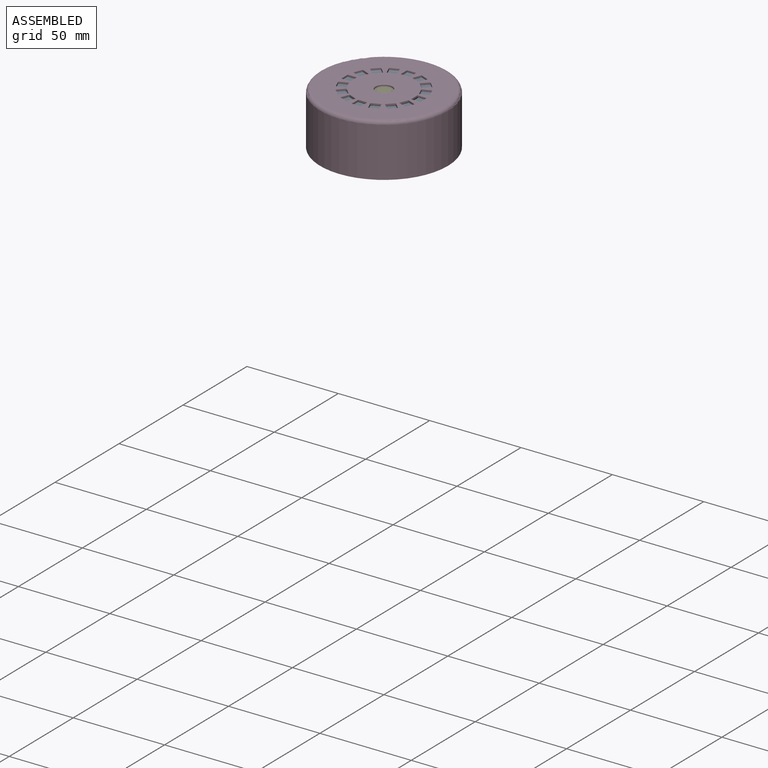
[diagram: assembled view]
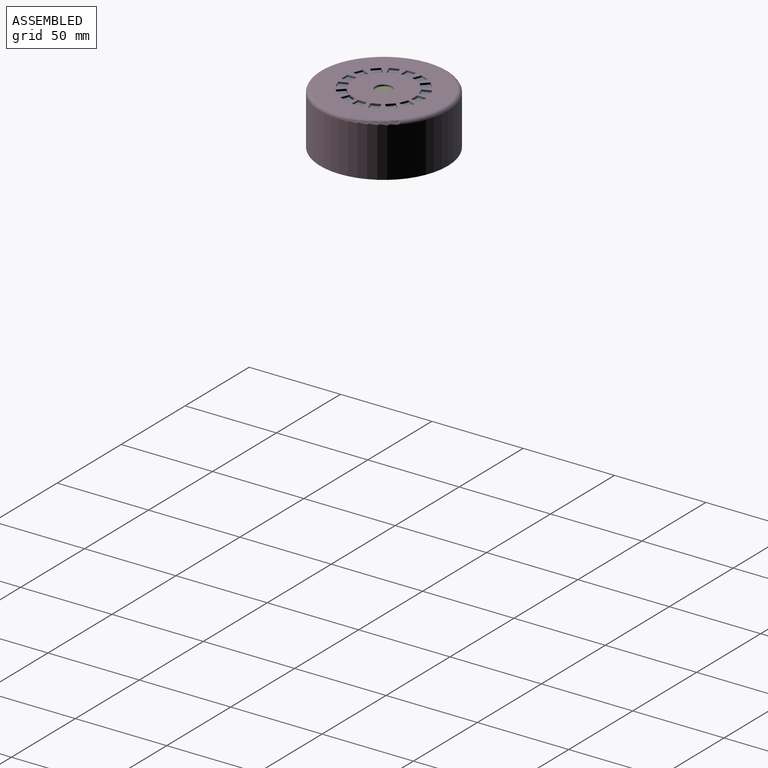
[diagram: assembled view, second angle]
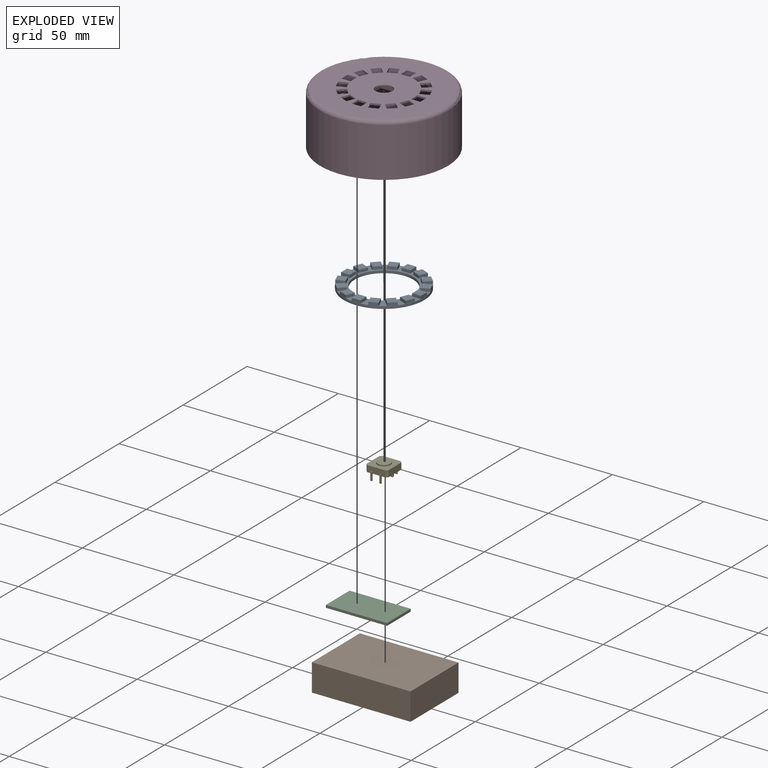
[diagram: exploded view]
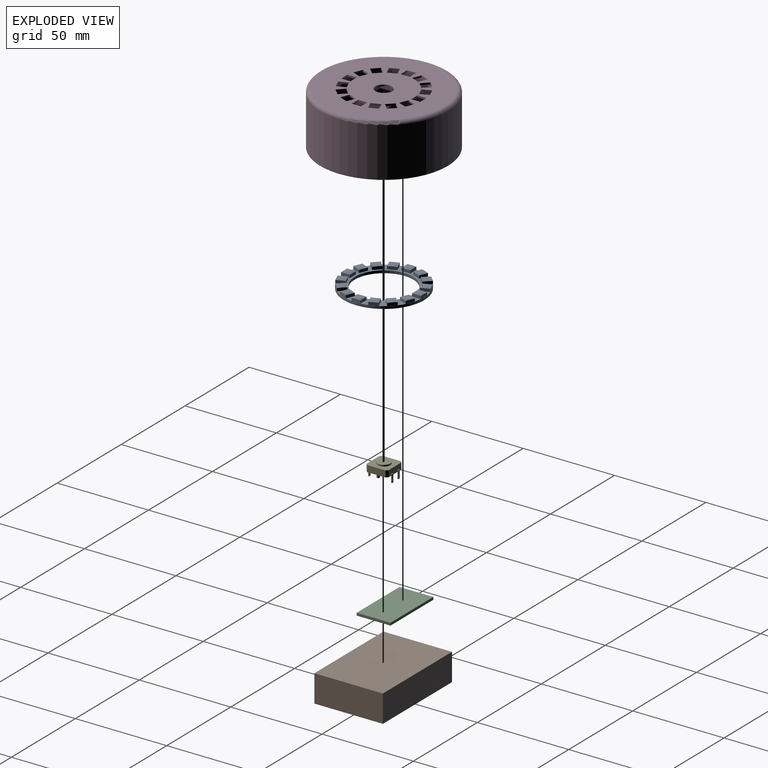
[diagram: exploded view, second angle]
ASSEMBLY  parts=5 mates=4
PART A: 132 faces, bbox 44x44x3.1 mm
  f0: cylinder r=1.95mm len=3.9mm, axis (0,0,-1), area 0.6mm2, adj f1,f131
  f1: plane 3.9x3.9mm, normal (0,0,1), area 11.9mm2, adj f0
  f2: cylinder r=1.95mm len=3.9mm, axis (0,0,-1), area 0.6mm2, adj f3,f126
  f3: plane 3.9x3.9mm, normal (0,0,1), area 11.9mm2, adj f2
  f4: cylinder r=1.95mm len=3.9mm, axis (0,0,-1), area 0.6mm2, adj f5,f121
  f5: plane 3.9x3.9mm, normal (0,0,1), area 11.9mm2, adj f4
  f6: cylinder r=1.95mm len=3.9mm, axis (0,0,-1), area 0.6mm2, adj f7,f116
  f7: plane 3.9x3.9mm, normal (0,0,1), area 11.9mm2, adj f6
  f8: cylinder r=1.95mm len=3.9mm, axis (0,0,-1), area 0.6mm2, adj f9,f111
  f9: plane 3.9x3.9mm, normal (0,0,1), area 11.9mm2, adj f8
  f10: cylinder r=1.95mm len=3.9mm, axis (0,0,-1), area 0.6mm2, adj f11,f106
  f11: plane 3.9x3.9mm, normal (0,0,1), area 11.9mm2, adj f10
  f12: cylinder r=1.95mm len=3.9mm, axis (0,0,-1), area 0.6mm2, adj f13,f101
  f13: plane 3.9x3.9mm, normal (0,0,1), area 11.9mm2, adj f12
  f14: cylinder r=1.95mm len=3.9mm, axis (0,0,-1), area 0.6mm2, adj f15,f96
  f15: plane 3.9x3.9mm, normal (0,0,1), area 11.9mm2, adj f14
  f16: cylinder r=1.95mm len=3.9mm, axis (0,0,-1), area 0.6mm2, adj f17,f91
  f17: plane 3.9x3.9mm, normal (0,0,1), area 11.9mm2, adj f16
  f18: cylinder r=1.95mm len=3.9mm, axis (0,0,-1), area 0.6mm2, adj f19,f86
  f19: plane 3.9x3.9mm, normal (0,0,1), area 11.9mm2, adj f18
  f20: cylinder r=1.95mm len=3.9mm, axis (0,0,-1), area 0.6mm2, adj f21,f81
  f21: plane 3.9x3.9mm, normal (0,0,1), area 11.9mm2, adj f20
  f22: cylinder r=1.95mm len=3.9mm, axis (0,0,-1), area 0.6mm2, adj f23,f76
  f23: plane 3.9x3.9mm, normal (0,0,1), area 11.9mm2, adj f22
  f24: cylinder r=1.95mm len=3.9mm, axis (0,0,-1), area 0.6mm2, adj f25,f71
  f25: plane 3.9x3.9mm, normal (0,0,1), area 11.9mm2, adj f24
  f26: cylinder r=1.95mm len=3.9mm, axis (0,0,-1), area 0.6mm2, adj f27,f66
  f27: plane 3.9x3.9mm, normal (0,0,1), area 11.9mm2, adj f26
  f28: cylinder r=1.95mm len=3.9mm, axis (0,0,-1), area 0.6mm2, adj f29,f61
  f29: plane 3.9x3.9mm, normal (0,0,1), area 11.9mm2, adj f28
  f30: plane 43.74x43.74mm, normal (0,0,1), area 340.9mm2, adj f47,f48,f51,f52,f53,f58,f59,f60
  f31: plane 4.43x1.84mm, normal (0,0,1), area 0.4mm2, adj f48,f127
  f32: plane 3.39x3.39mm, normal (0,0,1), area 0.4mm2, adj f48,f122
  f33: plane 4.43x1.84mm, normal (0,0,1), area 0.4mm2, adj f48,f117
  f34: plane 4.8x0.13mm, normal (0,0,1), area 0.4mm2, adj f48,f112
  f35: plane 4.43x1.84mm, normal (0,0,1), area 0.4mm2, adj f48,f107
  f36: plane 3.39x3.39mm, normal (0,0,1), area 0.4mm2, adj f48,f102
  f37: plane 4.43x1.84mm, normal (0,0,1), area 0.4mm2, adj f48,f97
  f38: plane 4.8x0.13mm, normal (0,0,1), area 0.4mm2, adj f48,f92
  f39: plane 4.43x1.84mm, normal (0,0,1), area 0.4mm2, adj f48,f87
  f40: plane 3.39x3.39mm, normal (0,0,1), area 0.4mm2, adj f48,f82
  f41: plane 4.43x1.84mm, normal (0,0,1), area 0.4mm2, adj f48,f77
  f42: plane 4.8x0.13mm, normal (0,0,1), area 0.4mm2, adj f48,f72
  f43: plane 4.43x1.84mm, normal (0,0,1), area 0.4mm2, adj f48,f67
  f44: plane 3.39x3.39mm, normal (0,0,1), area 0.4mm2, adj f48,f62
  f45: plane 4.43x1.84mm, normal (0,0,1), area 0.4mm2, adj f48,f57
  f46: plane 4.8x0.13mm, normal (0,0,1), area 0.4mm2, adj f48,f50
  f47: cylinder r=16mm len=32mm, axis (0,0,-1), area 140.7mm2, adj f30,f49
  f48: cylinder r=22mm len=44mm, axis (0,0,-1), area 193.5mm2, adj f30,f31,f32,f33,f34,f35,f36,f37
  f49: plane 44x44mm, normal (0,0,-1), area 716.3mm2, adj f47,f48
  f50: plane 4.8x1.6mm, normal (0,1,0), area 7.7mm2, adj f46,f51,f53,f54
  f51: plane 4.8x1.6mm, normal (-1,0,0), area 7.7mm2, adj f30,f50,f52,f54
  f52: plane 4.8x1.6mm, normal (0,-1,0), area 7.7mm2, adj f30,f51,f53,f54
  f53: plane 4.8x1.6mm, normal (1,0,0), area 7.7mm2, adj f30,f50,f52,f54
  f54: plane 4.8x4.8mm, normal (0,0,1), area 11.1mm2, adj f50,f51,f52,f53,f55
  f55: cylinder r=1.95mm len=3.9mm, axis (0,0,-1), area 0.6mm2, adj f54,f56
  f56: plane 3.9x3.9mm, normal (0,0,1), area 11.9mm2, adj f55
  f57: plane 4.43x1.84mm, normal (-0.38,0.92,0), area 7.7mm2, adj f45,f58,f60,f61
  f58: plane 4.43x1.84mm, normal (-0.92,-0.38,0), area 7.7mm2, adj f30,f57,f59,f61
  f59: plane 4.43x1.84mm, normal (0.38,-0.92,0), area 7.7mm2, adj f30,f58,f60,f61
  f60: plane 4.43x1.84mm, normal (0.92,0.38,0), area 7.7mm2, adj f30,f57,f59,f61
  f61: plane 6.27x6.27mm, normal (0,0,1), area 11.1mm2, adj f28,f57,f58,f59,f60
  f62: plane 3.39x3.39mm, normal (-0.71,0.71,0), area 7.7mm2, adj f44,f63,f65,f66
  f63: plane 3.39x3.39mm, normal (-0.71,-0.71,0), area 7.7mm2, adj f30,f62,f64,f66
  f64: plane 3.39x3.39mm, normal (0.71,-0.71,0), area 7.7mm2, adj f30,f63,f65,f66
  f65: plane 3.39x3.39mm, normal (0.71,0.71,0), area 7.7mm2, adj f30,f62,f64,f66
  f66: plane 6.79x6.79mm, normal (0,0,1), area 11.1mm2, adj f26,f62,f63,f64,f65
  f67: plane 4.43x1.84mm, normal (-0.92,0.38,0), area 7.7mm2, adj f43,f68,f70,f71
  f68: plane 4.43x1.84mm, normal (-0.38,-0.92,0), area 7.7mm2, adj f30,f67,f69,f71
  f69: plane 4.43x1.84mm, normal (0.92,-0.38,0), area 7.7mm2, adj f30,f68,f70,f71
  f70: plane 4.43x1.84mm, normal (0.38,0.92,0), area 7.7mm2, adj f30,f67,f69,f71
  f71: plane 6.27x6.27mm, normal (0,0,1), area 11.1mm2, adj f24,f67,f68,f69,f70
  f72: plane 4.8x1.6mm, normal (-1,0,0), area 7.7mm2, adj f42,f73,f75,f76
  f73: plane 4.8x1.6mm, normal (0,-1,0), area 7.7mm2, adj f30,f72,f74,f76
  f74: plane 4.8x1.6mm, normal (1,0,0), area 7.7mm2, adj f30,f73,f75,f76
  f75: plane 4.8x1.6mm, normal (0,1,0), area 7.7mm2, adj f30,f72,f74,f76
  f76: plane 4.8x4.8mm, normal (0,0,1), area 11.1mm2, adj f22,f72,f73,f74,f75
  f77: plane 4.43x1.84mm, normal (-0.92,-0.38,0), area 7.7mm2, adj f41,f78,f80,f81
  f78: plane 4.43x1.84mm, normal (0.38,-0.92,0), area 7.7mm2, adj f30,f77,f79,f81
  f79: plane 4.43x1.84mm, normal (0.92,0.38,0), area 7.7mm2, adj f30,f78,f80,f81
  f80: plane 4.43x1.84mm, normal (-0.38,0.92,0), area 7.7mm2, adj f30,f77,f79,f81
  f81: plane 6.27x6.27mm, normal (0,0,1), area 11.1mm2, adj f20,f77,f78,f79,f80
  f82: plane 3.39x3.39mm, normal (-0.71,-0.71,0), area 7.7mm2, adj f40,f83,f85,f86
  f83: plane 3.39x3.39mm, normal (0.71,-0.71,0), area 7.7mm2, adj f30,f82,f84,f86
  f84: plane 3.39x3.39mm, normal (0.71,0.71,0), area 7.7mm2, adj f30,f83,f85,f86
  f85: plane 3.39x3.39mm, normal (-0.71,0.71,0), area 7.7mm2, adj f30,f82,f84,f86
  f86: plane 6.79x6.79mm, normal (0,0,1), area 11.1mm2, adj f18,f82,f83,f84,f85
  f87: plane 4.43x1.84mm, normal (-0.38,-0.92,0), area 7.7mm2, adj f39,f88,f90,f91
  f88: plane 4.43x1.84mm, normal (0.92,-0.38,0), area 7.7mm2, adj f30,f87,f89,f91
  f89: plane 4.43x1.84mm, normal (0.38,0.92,0), area 7.7mm2, adj f30,f88,f90,f91
  f90: plane 4.43x1.84mm, normal (-0.92,0.38,0), area 7.7mm2, adj f30,f87,f89,f91
  f91: plane 6.27x6.27mm, normal (0,0,1), area 11.1mm2, adj f16,f87,f88,f89,f90
  f92: plane 4.8x1.6mm, normal (0,-1,0), area 7.7mm2, adj f38,f93,f95,f96
  f93: plane 4.8x1.6mm, normal (1,0,0), area 7.7mm2, adj f30,f92,f94,f96
  f94: plane 4.8x1.6mm, normal (0,1,0), area 7.7mm2, adj f30,f93,f95,f96
  f95: plane 4.8x1.6mm, normal (-1,0,0), area 7.7mm2, adj f30,f92,f94,f96
  f96: plane 4.8x4.8mm, normal (0,0,1), area 11.1mm2, adj f14,f92,f93,f94,f95
  f97: plane 4.43x1.84mm, normal (0.38,-0.92,0), area 7.7mm2, adj f37,f98,f100,f101
  f98: plane 4.43x1.84mm, normal (0.92,0.38,0), area 7.7mm2, adj f30,f97,f99,f101
  f99: plane 4.43x1.84mm, normal (-0.38,0.92,0), area 7.7mm2, adj f30,f98,f100,f101
  f100: plane 4.43x1.84mm, normal (-0.92,-0.38,0), area 7.7mm2, adj f30,f97,f99,f101
  f101: plane 6.27x6.27mm, normal (0,0,1), area 11.1mm2, adj f12,f97,f98,f99,f100
  f102: plane 3.39x3.39mm, normal (0.71,-0.71,0), area 7.7mm2, adj f36,f103,f105,f106
  f103: plane 3.39x3.39mm, normal (0.71,0.71,0), area 7.7mm2, adj f30,f102,f104,f106
  f104: plane 3.39x3.39mm, normal (-0.71,0.71,0), area 7.7mm2, adj f30,f103,f105,f106
  f105: plane 3.39x3.39mm, normal (-0.71,-0.71,0), area 7.7mm2, adj f30,f102,f104,f106
  f106: plane 6.79x6.79mm, normal (0,0,1), area 11.1mm2, adj f10,f102,f103,f104,f105
  f107: plane 4.43x1.84mm, normal (0.92,-0.38,0), area 7.7mm2, adj f35,f108,f110,f111
  f108: plane 4.43x1.84mm, normal (0.38,0.92,0), area 7.7mm2, adj f30,f107,f109,f111
  f109: plane 4.43x1.84mm, normal (-0.92,0.38,0), area 7.7mm2, adj f30,f108,f110,f111
  f110: plane 4.43x1.84mm, normal (-0.38,-0.92,0), area 7.7mm2, adj f30,f107,f109,f111
  f111: plane 6.27x6.27mm, normal (0,0,1), area 11.1mm2, adj f8,f107,f108,f109,f110
  f112: plane 4.8x1.6mm, normal (1,0,0), area 7.7mm2, adj f34,f113,f115,f116
  f113: plane 4.8x1.6mm, normal (0,1,0), area 7.7mm2, adj f30,f112,f114,f116
  f114: plane 4.8x1.6mm, normal (-1,0,0), area 7.7mm2, adj f30,f113,f115,f116
  f115: plane 4.8x1.6mm, normal (0,-1,0), area 7.7mm2, adj f30,f112,f114,f116
  f116: plane 4.8x4.8mm, normal (0,0,1), area 11.1mm2, adj f6,f112,f113,f114,f115
  f117: plane 4.43x1.84mm, normal (0.92,0.38,0), area 7.7mm2, adj f33,f118,f120,f121
  f118: plane 4.43x1.84mm, normal (-0.38,0.92,0), area 7.7mm2, adj f30,f117,f119,f121
  f119: plane 4.43x1.84mm, normal (-0.92,-0.38,0), area 7.7mm2, adj f30,f118,f120,f121
  f120: plane 4.43x1.84mm, normal (0.38,-0.92,0), area 7.7mm2, adj f30,f117,f119,f121
  f121: plane 6.27x6.27mm, normal (0,0,1), area 11.1mm2, adj f4,f117,f118,f119,f120
  f122: plane 3.39x3.39mm, normal (0.71,0.71,0), area 7.7mm2, adj f32,f123,f125,f126
  f123: plane 3.39x3.39mm, normal (-0.71,0.71,0), area 7.7mm2, adj f30,f122,f124,f126
  f124: plane 3.39x3.39mm, normal (-0.71,-0.71,0), area 7.7mm2, adj f30,f123,f125,f126
  f125: plane 3.39x3.39mm, normal (0.71,-0.71,0), area 7.7mm2, adj f30,f122,f124,f126
  f126: plane 6.79x6.79mm, normal (0,0,1), area 11.1mm2, adj f2,f122,f123,f124,f125
  f127: plane 4.43x1.84mm, normal (0.38,0.92,0), area 7.7mm2, adj f31,f128,f130,f131
  f128: plane 4.43x1.84mm, normal (-0.92,0.38,0), area 7.7mm2, adj f30,f127,f129,f131
  f129: plane 4.43x1.84mm, normal (-0.38,-0.92,0), area 7.7mm2, adj f30,f128,f130,f131
  f130: plane 4.43x1.84mm, normal (0.92,-0.38,0), area 7.7mm2, adj f30,f127,f129,f131
  f131: plane 6.27x6.27mm, normal (0,0,1), area 11.1mm2, adj f0,f127,f128,f129,f130
PART B: 6 faces, bbox 54x37.5x15 mm
  f0: plane 54x15mm, normal (0,1,0), area 810mm2, adj f1,f3,f4,f5
  f1: plane 37.5x15mm, normal (-1,0,0), area 562.5mm2, adj f0,f2,f4,f5
  f2: plane 54x15mm, normal (0,-1,0), area 810mm2, adj f1,f3,f4,f5
  f3: plane 37.5x15mm, normal (1,0,0), area 562.5mm2, adj f0,f2,f4,f5
  f4: plane 54x37.5mm, normal (0,0,1), area 2025mm2, adj f0,f1,f2,f3
  f5: plane 54x37.5mm, normal (0,0,-1), area 2025mm2, adj f0,f1,f2,f3
PART C: 21 faces, bbox 33.5x18.5x3.6 mm
  f0: plane 5.8x3.5mm, normal (0,0,1), area 17.9mm2, adj f7,f8,f9,f10,f11,f12,f13,f14
  f1: plane 33.5x18.5mm, normal (0,0,1), area 555.9mm2, adj f2,f3,f4,f5,f7,f8,f9,f10
  f2: plane 33.5x1.4mm, normal (0,1,0), area 46.9mm2, adj f1,f3,f5,f6
  f3: plane 18.5x1.4mm, normal (-1,0,0), area 25.9mm2, adj f1,f2,f4,f6
  f4: plane 33.5x1.4mm, normal (0,-1,0), area 46.9mm2, adj f1,f3,f5,f6
  f5: plane 18.5x1.4mm, normal (1,0,0), area 25.9mm2, adj f1,f2,f4,f6
  f6: plane 33.5x18.5mm, normal (0,0,-1), area 619.7mm2, adj f2,f3,f4,f5
  f7: plane 3.5x1.6mm, normal (0,1,0), area 5.6mm2, adj f0,f1,f8,f10
  f8: plane 5.8x1.6mm, normal (-1,0,0), area 9.3mm2, adj f0,f1,f7,f9
  f9: plane 3.5x1.6mm, normal (0,-1,0), area 5.6mm2, adj f0,f1,f8,f10
  f10: plane 5.8x1.6mm, normal (1,0,0), area 9.3mm2, adj f0,f1,f7,f9
  f11: plane 2.2x0.6mm, normal (1,0,0), area 1.3mm2, adj f0,f12,f14,f15
  f12: plane 1.1x0.6mm, normal (0,1,0), area 0.7mm2, adj f0,f11,f13,f15
  f13: plane 2.2x0.6mm, normal (-1,0,0), area 1.3mm2, adj f0,f12,f14,f15
  f14: plane 1.1x0.6mm, normal (0,-1,0), area 0.7mm2, adj f0,f11,f13,f15
  f15: plane 2.2x1.1mm, normal (0,0,1), area 2.4mm2, adj f11,f12,f13,f14
  f16: plane 4.67x4.67mm, normal (-0.71,0.71,0), area 6.6mm2, adj f1,f17,f19,f20
  f17: plane 4.67x4.67mm, normal (-0.71,-0.71,0), area 6.6mm2, adj f1,f16,f18,f20
  f18: plane 4.67x4.67mm, normal (0.71,-0.71,0), area 6.6mm2, adj f1,f17,f19,f20
  f19: plane 4.67x4.67mm, normal (0.71,0.71,0), area 6.6mm2, adj f1,f16,f18,f20
  f20: plane 9.33x9.33mm, normal (0,0,1), area 43.6mm2, adj f16,f17,f18,f19
PART D: 110 faces, bbox 75.8x75.8x29 mm
  f0: plane 18.5x8mm, normal (-1,0,0), area 102.1mm2, adj f4,f77,f79,f84,f88,f90,f104
  f1: plane 18.5x8mm, normal (1,0,0), area 148mm2, adj f2,f3,f8,f103
  f2: plane 12.5x2mm, normal (0,1,0), area 24.2mm2, adj f1,f8,f97,f98,f99,f101,f102,f103
  f3: plane 12.5x2mm, normal (0,-1,0), area 24.2mm2, adj f1,f8,f97,f98,f99,f101,f102,f103
  f4: plane 44.8x44.8mm, normal (0,0,1), area 905.2mm2, adj f0,f10,f13,f14,f15,f16,f17,f18
  f5: plane 66x66mm, normal (0,0,-1), area 2942.7mm2, adj f9,f13,f14,f15,f16,f17,f18,f19
  f6: cylinder r=33mm len=66mm, axis (0,0,-1), area 207.3mm2, adj f7,f8
  f7: plane 68x68mm, normal (0,0,1), area 210.5mm2, adj f6,f107
  f8: plane 66x66mm, normal (0,0,1), area 1552.7mm2, adj f1,f2,f3,f6,f11,f92,f93,f94
  f9: torus R=33mm, axis (0,0,1), area 676.5mm2, adj f5,f108
  f10: cylinder r=22.4mm len=44.8mm, axis (0,0,-1), area 422.2mm2, adj f4,f12
  f11: cylinder r=23.9mm len=47.8mm, axis (0,0,-1), area 450.5mm2, adj f8,f12
  f12: plane 47.8x47.8mm, normal (0,0,1), area 218.2mm2, adj f10,f11
  f13: plane 5x1mm, normal (1,0,0), area 5mm2, adj f4,f5,f14,f15
  f14: plane 5x1mm, normal (0,-1,0), area 5mm2, adj f4,f5,f13,f16
  f15: plane 5x1mm, normal (0,1,0), area 5mm2, adj f4,f5,f13,f16
  f16: plane 5x1mm, normal (-1,0,0), area 5mm2, adj f4,f5,f14,f15
  f17: plane 4.62x1.91mm, normal (0.92,0.38,0), area 5mm2, adj f4,f5,f18,f19
  f18: plane 4.62x1.91mm, normal (0.38,-0.92,0), area 5mm2, adj f4,f5,f17,f20
  f19: plane 4.62x1.91mm, normal (-0.38,0.92,0), area 5mm2, adj f4,f5,f17,f20
  f20: plane 4.62x1.91mm, normal (-0.92,-0.38,0), area 5mm2, adj f4,f5,f18,f19
  f21: plane 3.54x3.54mm, normal (0.71,0.71,0), area 5mm2, adj f4,f5,f22,f23
  f22: plane 3.54x3.54mm, normal (0.71,-0.71,0), area 5mm2, adj f4,f5,f21,f24
  f23: plane 3.54x3.54mm, normal (-0.71,0.71,0), area 5mm2, adj f4,f5,f21,f24
  f24: plane 3.54x3.54mm, normal (-0.71,-0.71,0), area 5mm2, adj f4,f5,f22,f23
  f25: plane 4.62x1.91mm, normal (0.38,0.92,0), area 5mm2, adj f4,f5,f26,f27
  f26: plane 4.62x1.91mm, normal (0.92,-0.38,0), area 5mm2, adj f4,f5,f25,f28
  f27: plane 4.62x1.91mm, normal (-0.92,0.38,0), area 5mm2, adj f4,f5,f25,f28
  f28: plane 4.62x1.91mm, normal (-0.38,-0.92,0), area 5mm2, adj f4,f5,f26,f27
  f29: plane 5x1mm, normal (0,1,0), area 5mm2, adj f4,f5,f30,f31
  f30: plane 5x1mm, normal (1,0,0), area 5mm2, adj f4,f5,f29,f32
  f31: plane 5x1mm, normal (-1,0,0), area 5mm2, adj f4,f5,f29,f32
  f32: plane 5x1mm, normal (0,-1,0), area 5mm2, adj f4,f5,f30,f31
  f33: plane 4.62x1.91mm, normal (-0.38,0.92,0), area 5mm2, adj f4,f5,f34,f35
  f34: plane 4.62x1.91mm, normal (0.92,0.38,0), area 5mm2, adj f4,f5,f33,f36
  f35: plane 4.62x1.91mm, normal (-0.92,-0.38,0), area 5mm2, adj f4,f5,f33,f36
  f36: plane 4.62x1.91mm, normal (0.38,-0.92,0), area 5mm2, adj f4,f5,f34,f35
  f37: plane 3.54x3.54mm, normal (-0.71,0.71,0), area 5mm2, adj f4,f5,f38,f39
  f38: plane 3.54x3.54mm, normal (0.71,0.71,0), area 5mm2, adj f4,f5,f37,f40
  f39: plane 3.54x3.54mm, normal (-0.71,-0.71,0), area 5mm2, adj f4,f5,f37,f40
  f40: plane 3.54x3.54mm, normal (0.71,-0.71,0), area 5mm2, adj f4,f5,f38,f39
  f41: plane 4.62x1.91mm, normal (-0.92,0.38,0), area 5mm2, adj f4,f5,f42,f43
  f42: plane 4.62x1.91mm, normal (0.38,0.92,0), area 5mm2, adj f4,f5,f41,f44
  f43: plane 4.62x1.91mm, normal (-0.38,-0.92,0), area 5mm2, adj f4,f5,f41,f44
  f44: plane 4.62x1.91mm, normal (0.92,-0.38,0), area 5mm2, adj f4,f5,f42,f43
  f45: plane 5x1mm, normal (-1,0,0), area 5mm2, adj f4,f5,f46,f47
  f46: plane 5x1mm, normal (0,1,0), area 5mm2, adj f4,f5,f45,f48
  f47: plane 5x1mm, normal (0,-1,0), area 5mm2, adj f4,f5,f45,f48
  f48: plane 5x1mm, normal (1,0,0), area 5mm2, adj f4,f5,f46,f47
  f49: plane 4.62x1.91mm, normal (-0.92,-0.38,0), area 5mm2, adj f4,f5,f50,f51
  f50: plane 4.62x1.91mm, normal (-0.38,0.92,0), area 5mm2, adj f4,f5,f49,f52
  f51: plane 4.62x1.91mm, normal (0.38,-0.92,0), area 5mm2, adj f4,f5,f49,f52
  f52: plane 4.62x1.91mm, normal (0.92,0.38,0), area 5mm2, adj f4,f5,f50,f51
  f53: plane 3.54x3.54mm, normal (-0.71,-0.71,0), area 5mm2, adj f4,f5,f54,f55
  f54: plane 3.54x3.54mm, normal (-0.71,0.71,0), area 5mm2, adj f4,f5,f53,f56
  f55: plane 3.54x3.54mm, normal (0.71,-0.71,0), area 5mm2, adj f4,f5,f53,f56
  f56: plane 3.54x3.54mm, normal (0.71,0.71,0), area 5mm2, adj f4,f5,f54,f55
  f57: plane 4.62x1.91mm, normal (-0.38,-0.92,0), area 5mm2, adj f4,f5,f58,f59
  f58: plane 4.62x1.91mm, normal (-0.92,0.38,0), area 5mm2, adj f4,f5,f57,f60
  f59: plane 4.62x1.91mm, normal (0.92,-0.38,0), area 5mm2, adj f4,f5,f57,f60
  f60: plane 4.62x1.91mm, normal (0.38,0.92,0), area 5mm2, adj f4,f5,f58,f59
  f61: plane 5x1mm, normal (0,-1,0), area 5mm2, adj f4,f5,f62,f63
  f62: plane 5x1mm, normal (-1,0,0), area 5mm2, adj f4,f5,f61,f64
  f63: plane 5x1mm, normal (1,0,0), area 5mm2, adj f4,f5,f61,f64
  f64: plane 5x1mm, normal (0,1,0), area 5mm2, adj f4,f5,f62,f63
  f65: plane 4.62x1.91mm, normal (0.38,-0.92,0), area 5mm2, adj f4,f5,f66,f67
  f66: plane 4.62x1.91mm, normal (-0.92,-0.38,0), area 5mm2, adj f4,f5,f65,f68
  f67: plane 4.62x1.91mm, normal (0.92,0.38,0), area 5mm2, adj f4,f5,f65,f68
  f68: plane 4.62x1.91mm, normal (-0.38,0.92,0), area 5mm2, adj f4,f5,f66,f67
  f69: plane 3.54x3.54mm, normal (0.71,-0.71,0), area 5mm2, adj f4,f5,f70,f71
  f70: plane 3.54x3.54mm, normal (-0.71,-0.71,0), area 5mm2, adj f4,f5,f69,f72
  f71: plane 3.54x3.54mm, normal (0.71,0.71,0), area 5mm2, adj f4,f5,f69,f72
  f72: plane 3.54x3.54mm, normal (-0.71,0.71,0), area 5mm2, adj f4,f5,f70,f71
  f73: plane 4.62x1.91mm, normal (0.92,-0.38,0), area 5mm2, adj f4,f5,f74,f75
  f74: plane 4.62x1.91mm, normal (-0.38,-0.92,0), area 5mm2, adj f4,f5,f73,f76
  f75: plane 4.62x1.91mm, normal (0.38,0.92,0), area 5mm2, adj f4,f5,f73,f76
  f76: plane 4.62x1.91mm, normal (-0.92,0.38,0), area 5mm2, adj f4,f5,f74,f75
  f77: plane 15.3x3mm, normal (0,1,0), area 45.9mm2, adj f0,f4,f78,f84
  f78: plane 15.3x3mm, normal (-1,0,0), area 45.9mm2, adj f4,f77,f79,f84
  f79: plane 15.3x3mm, normal (0,-1,0), area 45.9mm2, adj f0,f4,f78,f84
  f80: plane 12.3x3mm, normal (1,0,0), area 36.9mm2, adj f81,f83,f84,f85
  f81: plane 12.3x3mm, normal (0,-1,0), area 36.9mm2, adj f80,f82,f84,f85
  f82: plane 12.3x3mm, normal (-1,0,0), area 36.9mm2, adj f81,f83,f84,f85
  f83: plane 12.3x3mm, normal (0,1,0), area 36.9mm2, adj f80,f82,f84,f85
  f84: plane 15.3x15.3mm, normal (0,0,1), area 82.8mm2, adj f0,f77,f78,f79,f80,f81,f82,f83
  f85: plane 12.3x12.3mm, normal (0,0,1), area 87.7mm2, adj f80,f81,f82,f83,f86
  f86: cylinder r=4.5mm len=9mm, axis (0,0,1), area 14.1mm2, adj f85,f100
  f87: plane 18.5x2.9mm, normal (-1,0,0), area 53.6mm2, adj f88,f90,f91,f105
  f88: plane 12.5x2mm, normal (0,-1,0), area 24.2mm2, adj f0,f4,f87,f89,f91,f104,f105,f106
  f89: plane 18.5x12.5mm, normal (1,0,0), area 231.2mm2, adj f4,f88,f90,f91
  f90: plane 12.5x2mm, normal (0,1,0), area 24.2mm2, adj f0,f4,f87,f89,f91,f104,f105,f106
  f91: plane 18.5x2mm, normal (0,0,1), area 37mm2, adj f87,f88,f89,f90
  f92: plane 12.5x2mm, normal (0,1,0), area 25mm2, adj f8,f93,f95,f96
  f93: plane 18.5x12.5mm, normal (-1,0,0), area 231.2mm2, adj f8,f92,f94,f96
  f94: plane 12.5x2mm, normal (0,-1,0), area 25mm2, adj f8,f93,f95,f96
  f95: plane 18.5x12.5mm, normal (1,0,0), area 231.2mm2, adj f8,f92,f94,f96
  f96: plane 18.5x2mm, normal (0,0,1), area 37mm2, adj f92,f93,f94,f95
  f97: plane 18.5x12.5mm, normal (-1,0,0), area 231.2mm2, adj f2,f3,f8,f99
  f98: plane 18.5x2.9mm, normal (1,0,0), area 53.7mm2, adj f2,f3,f99,f101
  f99: plane 18.5x2mm, normal (0,0,1), area 37mm2, adj f2,f3,f97,f98
  f100: torus R=5mm, axis (0,0,1), area 23.1mm2, adj f5,f86
  f101: plane 18.5x0.5mm, normal (0,0,-1), area 9.3mm2, adj f2,f3,f98,f102
  f102: plane 18.5x1.6mm, normal (1,0,0), area 29.6mm2, adj f2,f3,f101,f103
  f103: plane 18.5x0.5mm, normal (0,0,1), area 9.3mm2, adj f1,f2,f3,f102
  f104: plane 18.5x0.5mm, normal (0,0,1), area 9.2mm2, adj f0,f88,f90,f106
  f105: plane 18.5x0.5mm, normal (0,0,-1), area 9.2mm2, adj f87,f88,f90,f106
  f106: plane 18.5x1.6mm, normal (-1,0,0), area 29.6mm2, adj f88,f90,f104,f105
  f107: cylinder r=34mm len=68mm, axis (0,0,-1), area 5768mm2, adj f7,f109
  f108: cylinder r=35mm len=70mm, axis (0,0,-1), area 5937.6mm2, adj f9,f109
  f109: plane 70x70mm, normal (0,0,1), area 216.8mm2, adj f107,f108
PART E: 43 faces, bbox 12x13x7.8 mm
  f0: plane 10x3.5mm, normal (0,1,0), area 33mm2, adj f4,f5,f6,f9,f25,f26,f28,f31
  f1: plane 10x3.5mm, normal (-1,0,0), area 35mm2, adj f4,f5,f8,f9
  f2: plane 10x3.5mm, normal (0,-1,0), area 33mm2, adj f4,f5,f7,f8,f14,f15,f17,f20
  f3: plane 10x3.5mm, normal (1,0,0), area 35mm2, adj f4,f5,f6,f7
  f4: plane 12x12mm, normal (0,0,1), area 102.4mm2, adj f0,f1,f2,f3,f6,f7,f8,f9
  f5: plane 12x12mm, normal (0,0,-1), area 138mm2, adj f0,f1,f2,f3,f6,f7,f8,f9
  f6: plane 3.5x1mm, normal (0.71,0.71,0), area 4.9mm2, adj f0,f3,f4,f5
  f7: plane 3.5x1mm, normal (0.71,-0.71,0), area 4.9mm2, adj f2,f3,f4,f5
  f8: plane 3.5x1mm, normal (-0.71,-0.71,0), area 4.9mm2, adj f1,f2,f4,f5
  f9: plane 3.5x1mm, normal (-0.71,0.71,0), area 4.9mm2, adj f0,f1,f4,f5
  f10: cylinder r=3.55mm len=7.1mm, axis (0,0,-1), area 15.6mm2, adj f4,f12
  f11: plane 6.9x6.9mm, normal (0,0,1), area 37.4mm2, adj f12
  f12: torus R=3.45mm, axis (0,0,1), area 3.5mm2, adj f10,f11
  f13: plane 3.5x1mm, normal (0,1,0), area 3.5mm2, adj f5,f15,f16,f17
  f14: plane 1x0.5mm, normal (0,0,1), area 0.5mm2, adj f2,f15,f17,f18
  f15: plane 4.5x0.5mm, normal (-1,0,0), area 2.2mm2, adj f2,f13,f14,f16,f18
  f16: plane 1x0.5mm, normal (0,0,-1), area 0.5mm2, adj f13,f15,f17,f18
  f17: plane 4.5x0.5mm, normal (1,0,0), area 2.2mm2, adj f2,f13,f14,f16,f18
  f18: plane 4.5x1mm, normal (0,-1,0), area 4.5mm2, adj f14,f15,f16,f17
  f19: plane 3.5x1mm, normal (0,1,0), area 3.5mm2, adj f5,f20,f22,f23
  f20: plane 4.5x0.5mm, normal (1,0,0), area 2.2mm2, adj f2,f19,f21,f23,f24
  f21: plane 1x0.5mm, normal (0,0,1), area 0.5mm2, adj f2,f20,f22,f24
  f22: plane 4.5x0.5mm, normal (-1,0,0), area 2.2mm2, adj f2,f19,f21,f23,f24
  f23: plane 1x0.5mm, normal (0,0,-1), area 0.5mm2, adj f19,f20,f22,f24
  f24: plane 4.5x1mm, normal (0,-1,0), area 4.5mm2, adj f20,f21,f22,f23
  f25: plane 1x0.5mm, normal (0,0,1), area 0.5mm2, adj f0,f26,f28,f29
  f26: plane 4.5x0.5mm, normal (1,0,0), area 2.2mm2, adj f0,f25,f27,f29,f30
  f27: plane 1x0.5mm, normal (0,0,-1), area 0.5mm2, adj f26,f28,f29,f30
  f28: plane 4.5x0.5mm, normal (-1,0,0), area 2.2mm2, adj f0,f25,f27,f29,f30
  f29: plane 4.5x1mm, normal (0,1,0), area 4.5mm2, adj f25,f26,f27,f28
  f30: plane 3.5x1mm, normal (0,-1,0), area 3.5mm2, adj f5,f26,f27,f28
  f31: plane 4.5x0.5mm, normal (-1,0,0), area 2.2mm2, adj f0,f32,f34,f35,f36
  f32: plane 1x0.5mm, normal (0,0,1), area 0.5mm2, adj f0,f31,f33,f35
  f33: plane 4.5x0.5mm, normal (1,0,0), area 2.2mm2, adj f0,f32,f34,f35,f36
  f34: plane 1x0.5mm, normal (0,0,-1), area 0.5mm2, adj f31,f33,f35,f36
  f35: plane 4.5x1mm, normal (0,1,0), area 4.5mm2, adj f31,f32,f33,f34
  f36: plane 3.5x1mm, normal (0,-1,0), area 3.5mm2, adj f5,f31,f33,f34
  f37: cylinder r=0.8mm len=1.7mm, axis (0,0,1), area 8.5mm2, adj f5,f42
  f38: plane 1x1mm, normal (0,0,-1), area 0.8mm2, adj f42
  f39: cylinder r=0.8mm len=1.7mm, axis (0,0,1), area 8.5mm2, adj f5,f41
  f40: plane 1x1mm, normal (0,0,-1), area 0.8mm2, adj f41
  f41: cone r=0.5mm half-angle=45deg, axis (0,0,1), area 1.7mm2, adj f39,f40
  f42: cone r=0.5mm half-angle=45deg, axis (0,0,1), area 1.7mm2, adj f37,f38
PLACE A t=(0.57,-0.68,-5.22)mm
PLACE B t=(1.22,-0.68,-29.72)mm
PLACE C rot(axis=(1,0,0),180deg) t=(-8.03,-0.68,-10.42)mm
PLACE D rot(axis=(1,0,0),180deg) t=(0.57,-0.68,-1.22)mm
PLACE E rot(axis=(-1,0,0),0deg) t=(0.57,-0.68,-6.52)mm
MATE fastened D.f96 <-> B.f4  axis (0,0,-1) through (27.22,-0.68,-14.72)mm
MATE fastened A.f47 <-> D.f9  axis (0,0,-1) through (0.57,-0.68,-2.22)mm
MATE fastened D.f9 <-> E.f10  axis (0,0,1) through (0.57,-0.68,-2.22)mm
MATE fastened C.f1 <-> D.f105  axis (0,0,-1) through (8.72,8.57,-11.82)mm
